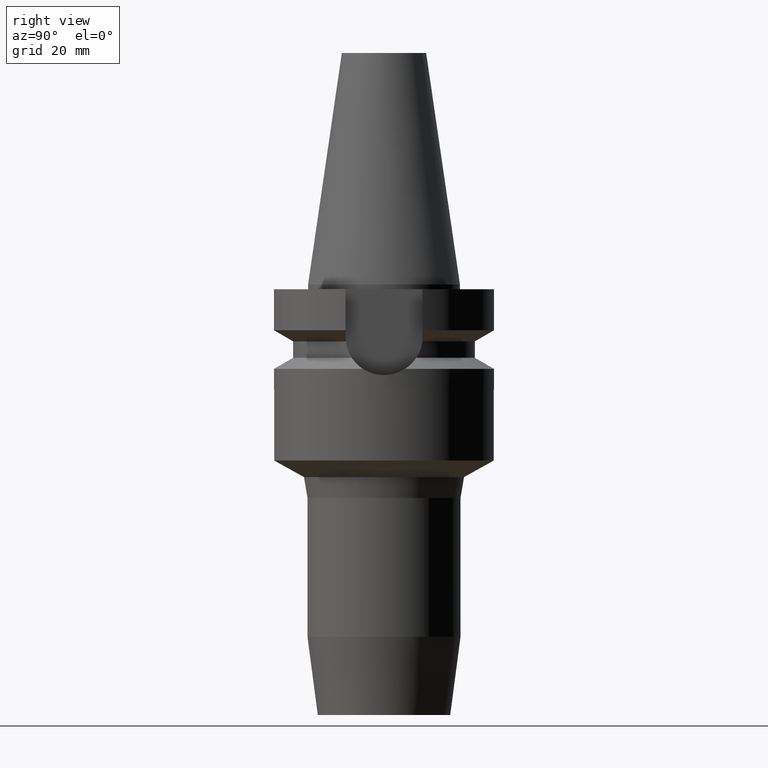
[diagram: clean part render]
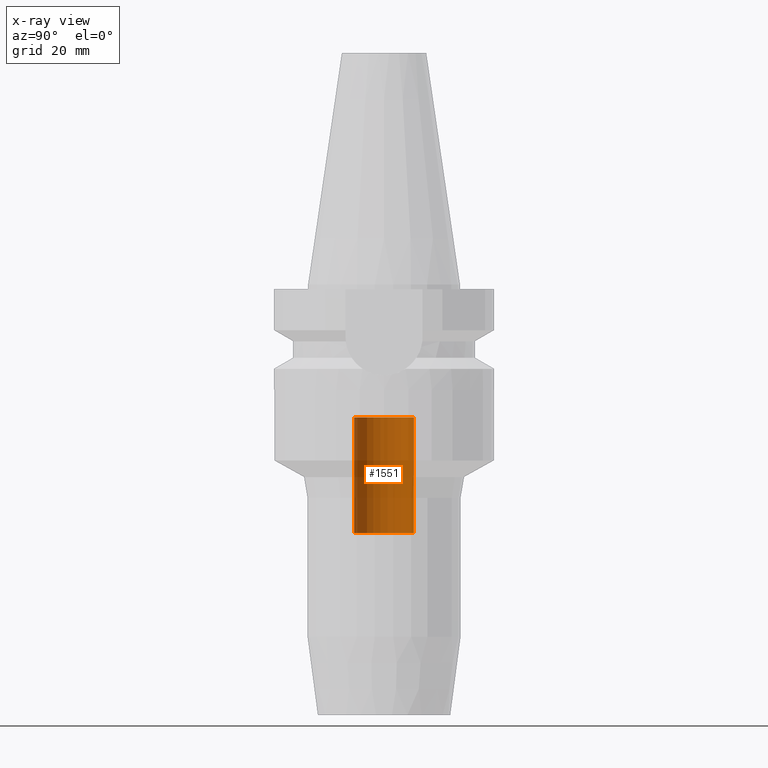
[diagram: x-ray — body ghosted, one internal face saturated and labeled with its STEP entity id]
A machine part, right view, then the same camera in x-ray: the body is ghosted and one INTERNAL B-rep face — a face not visible from any outside direction — is saturated and labeled: STEP entity #1551.
In plain terms, the highlighted cylindrical surface (edge-blend (fillet) strip) has radius 6.25 mm, axis along (0, 0, -1).
Its self-contained STEP definition (entity closure, byte-faithful):
#270=CARTESIAN_POINT('',(0.E0,1.902121408436E-14,-2.78E1));
#271=DIRECTION('',(0.E0,0.E0,1.E0));
#272=DIRECTION('',(0.E0,1.E0,0.E0));
#273=AXIS2_PLACEMENT_3D('',#270,#271,#272);
#294=DIRECTION('',(0.E0,0.E0,1.E0));
#295=VECTOR('',#294,2.42E1);
#296=CARTESIAN_POINT('',(0.E0,6.25E0,-5.2E1));
#297=LINE('',#296,#295);
#301=DIRECTION('',(0.E0,0.E0,1.E0));
#302=VECTOR('',#301,2.42E1);
#303=CARTESIAN_POINT('',(0.E0,-6.25E0,-5.2E1));
#304=LINE('',#303,#302);
#308=CARTESIAN_POINT('',(0.E0,1.902121408436E-14,-5.2E1));
#309=DIRECTION('',(0.E0,0.E0,-1.E0));
#310=DIRECTION('',(0.E0,-1.E0,0.E0));
#311=AXIS2_PLACEMENT_3D('',#308,#309,#310);
#1154=CARTESIAN_POINT('',(0.E0,-6.25E0,-2.78E1));
#1155=CARTESIAN_POINT('',(0.E0,6.25E0,-2.78E1));
#1156=VERTEX_POINT('',#1154);
#1157=VERTEX_POINT('',#1155);
#1158=CARTESIAN_POINT('',(0.E0,6.25E0,-5.2E1));
#1159=VERTEX_POINT('',#1158);
#1160=CARTESIAN_POINT('',(0.E0,-6.25E0,-5.2E1));
#1161=VERTEX_POINT('',#1160);
#1539=CARTESIAN_POINT('',(0.E0,1.902121408436E-14,5.532E1));
#1540=DIRECTION('',(0.E0,0.E0,-1.E0));
#1541=DIRECTION('',(0.E0,-1.E0,0.E0));
#1542=AXIS2_PLACEMENT_3D('',#1539,#1540,#1541);
#1543=CYLINDRICAL_SURFACE('',#1542,6.25E0);
#1544=ORIENTED_EDGE('',*,*,#1529,.F.);
#1546=ORIENTED_EDGE('',*,*,#1545,.F.);
#1547=ORIENTED_EDGE('',*,*,#1532,.T.);
#1548=ORIENTED_EDGE('',*,*,#1515,.F.);
#1549=EDGE_LOOP('',(#1544,#1546,#1547,#1548));
#1550=FACE_OUTER_BOUND('',#1549,.F.);
#274=CIRCLE('',#273,6.25E0);
#312=CIRCLE('',#311,6.25E0);
#1515=EDGE_CURVE('',#1157,#1156,#274,.T.);
#1529=EDGE_CURVE('',#1159,#1157,#297,.T.);
#1532=EDGE_CURVE('',#1161,#1156,#304,.T.);
#1545=EDGE_CURVE('',#1161,#1159,#312,.T.);
#1551=ADVANCED_FACE('',(#1550),#1543,.F.);